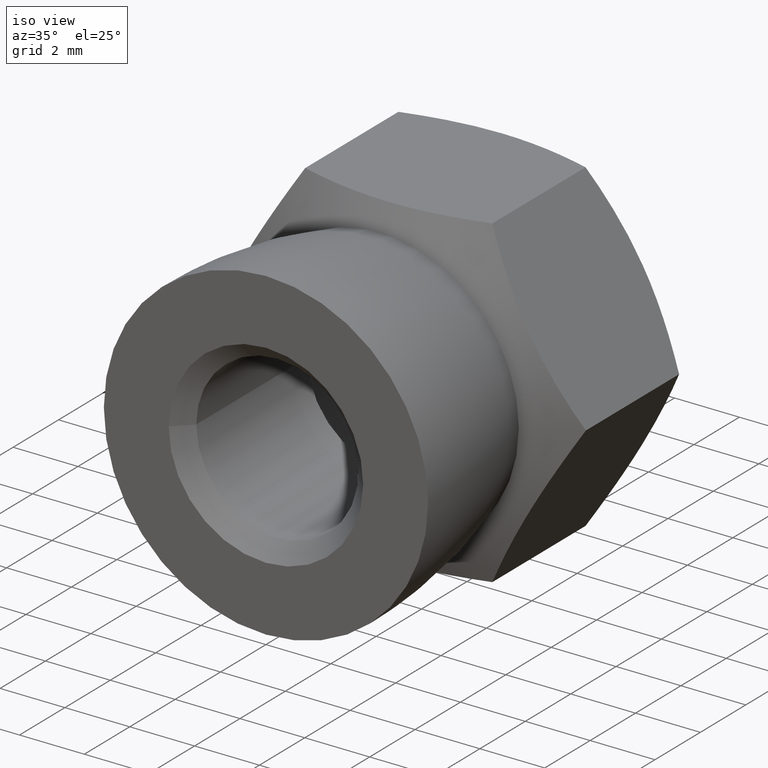
[diagram: clean part render]
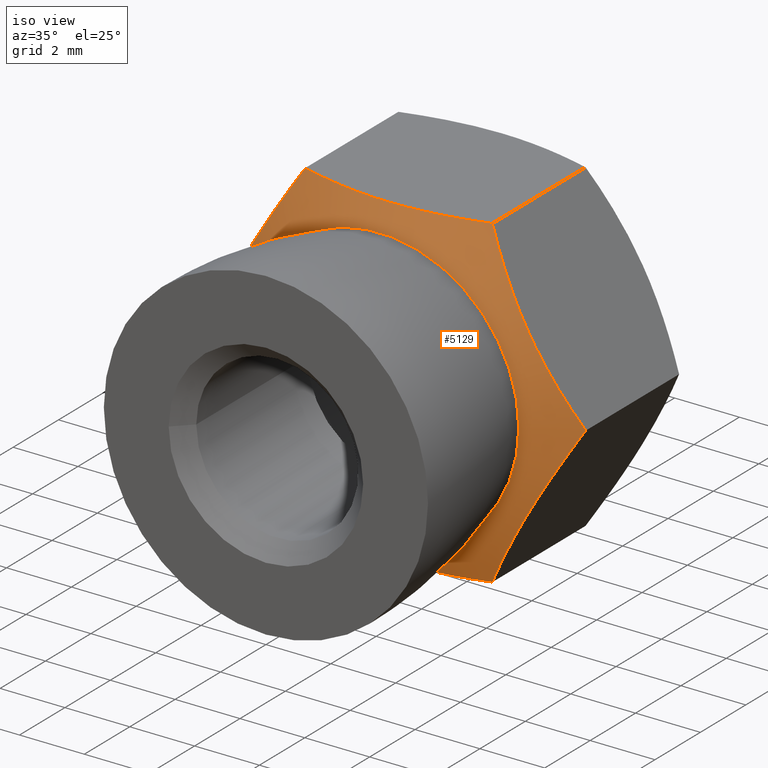
[diagram: same view with one face highlighted and labeled with its STEP entity id]
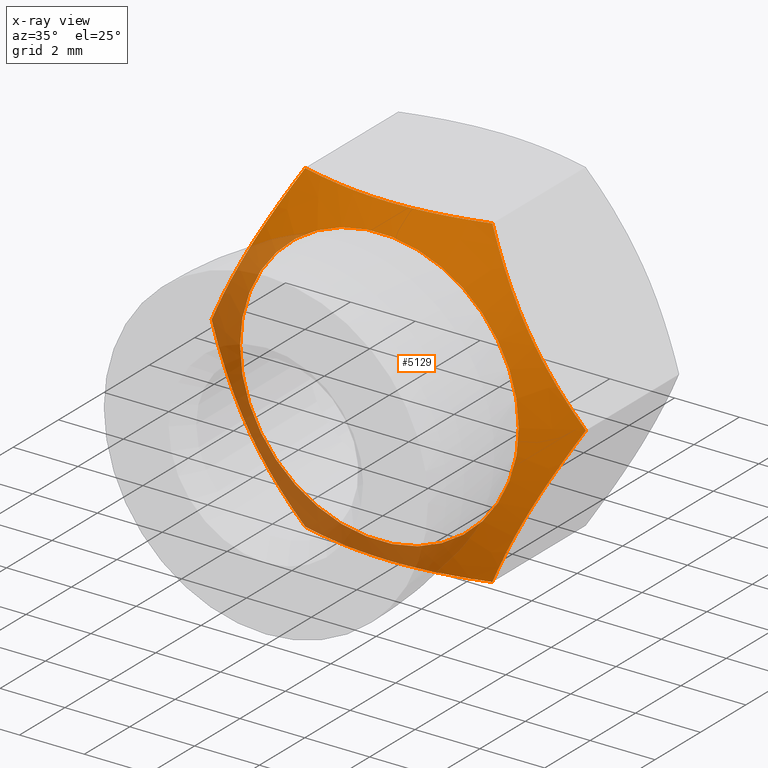
[diagram: x-ray of the same camera — body ghosted, the highlighted face saturated]
A machine part, iso view. The second image highlights one B-rep face of the part: STEP entity #5129.
The next image is the same camera in x-ray: the body ghosted, the highlighted face saturated — about 27% of this face is hidden behind the body in this view.
In plain terms, the highlighted conical surface has half-angle 60 deg.
Its self-contained STEP definition (entity closure, byte-faithful):
#115 = CARTESIAN_POINT ( 'NONE',  ( -0.9718922986298234035, 5.446004199421925485, -4.999999999999998224 ) ) ;
#165 = CARTESIAN_POINT ( 'NONE',  ( -0.4870926242147066709, 5.404096240944796570, -5.000000000000000888 ) ) ;
#219 = CARTESIAN_POINT ( 'NONE',  ( -2.417105151674780128, 5.715151997474116286, -4.999999999999999112 ) ) ;
#272 = CARTESIAN_POINT ( 'NONE',  ( 0.4888315940263714965, 5.404194223216501669, -5.000000000000000888 ) ) ;
#969 = CARTESIAN_POINT ( 'NONE',  ( -4.938378386023502209, 5.485357820840548904, 1.446477728407307817 ) ) ;
#1488 = CARTESIAN_POINT ( 'NONE',  ( -1.936092870082982254, 5.601447280723088618, -5.000000000000000888 ) ) ;
#1535 = CARTESIAN_POINT ( 'NONE',  ( 1.947366201742060099, 5.603832604811248785, -5.000000000000000888 ) ) ;
#1589 = ORIENTED_EDGE ( 'NONE', *, *, #10053, .T. ) ;
#2261 = CARTESIAN_POINT ( 'NONE',  ( -3.842998808858276494, 5.455133333985152433, -3.343730809630789391 ) ) ;
#2371 = CARTESIAN_POINT ( 'NONE',  ( 5.299591420899219862, 5.602068402268504776, -0.8208383996464131416 ) ) ;
#2390 = CARTESIAN_POINT ( 'NONE',  ( -0.9718922986298202948, 5.446004199421927261, 4.999999999999997335 ) ) ;
#2638 = CARTESIAN_POINT ( 'NONE',  ( 3.673940397442054938E-16, 5.000000000000001776, 0.000000000000000000 ) ) ;
#2814 = CARTESIAN_POINT ( 'NONE',  ( 2.420118327524840574, 5.716021826418211660, -5.000000000000000888 ) ) ;
#3423 = CARTESIAN_POINT ( 'NONE',  ( 4.823738040146305472, 5.404772064894670436, 1.645040632063879293 ) ) ;
#3464 = ORIENTED_EDGE ( 'NONE', *, *, #6119, .T. ) ;
#3527 = CARTESIAN_POINT ( 'NONE',  ( 5.302151296893804044, 5.578592321029638867, 0.8164045643627186877 ) ) ;
#3609 = CONICAL_SURFACE ( 'NONE', #9583, 4.300000000000001599, 1.047197551196603404 ) ;
#3857 = B_SPLINE_CURVE_WITH_KNOTS ( 'NONE', 3,
 ( #13723, #6136, #7300, #8749, #4992, #13669, #969, #11297, #8640, #13617 ),
 .UNSPECIFIED., .F., .F.,
 ( 4, 2, 2, 2, 4 ),
 ( 2.380735200809878351E-07, 0.002915699217586098339, 0.003644564503602603072, 0.004373429789619107805, 0.005831160361652118138 ),
 .UNSPECIFIED. ) ;
#3943 = ORIENTED_EDGE ( 'NONE', *, *, #13448, .T. ) ;
#3993 = CARTESIAN_POINT ( 'NONE',  ( 2.886751345948124658, 5.850727175817934445, -5.000000000000000000 ) ) ;
#4005 = ORIENTED_EDGE ( 'NONE', *, *, #4877, .T. ) ;
#4072 = VERTEX_POINT ( 'NONE', #6693 ) ;
#4169 = VERTEX_POINT ( 'NONE', #5679 ) ;
#4175 = DIRECTION ( 'NONE',  ( 7.347880794884106671E-17, 1.000000000000000000, -0.000000000000000000 ) ) ;
#4483 = AXIS2_PLACEMENT_3D ( 'NONE', #12553, #15040, #6270 ) ;
#4533 = CARTESIAN_POINT ( 'NONE',  ( -5.773502691896257311, 5.850727175817934445, 7.806255641895631925E-15 ) ) ;
#4695 = CARTESIAN_POINT ( 'NONE',  ( 4.210170878072868383, 5.403990664014552081, 2.707770130630919869 ) ) ;
#4781 = CARTESIAN_POINT ( 'NONE',  ( 2.420118327524843238, 5.716021826418211660, 4.999999999999998224 ) ) ;
#4803 = CARTESIAN_POINT ( 'NONE',  ( 4.086880414895044389, 5.414429110310912563, 2.921315476943608935 ) ) ;
#4815 = CARTESIAN_POINT ( 'NONE',  ( 4.938378386023506650, 5.485357820840550680, -1.446477728407302044 ) ) ;
#4816 = CARTESIAN_POINT ( 'NONE',  ( -3.721875651820885977, 5.485357820840546239, -3.553522271592694182 ) ) ;
#4835 = CARTESIAN_POINT ( 'NONE',  ( 1.947366201742063652, 5.603832604811247897, 4.999999999999998224 ) ) ;
#4838 = B_SPLINE_CURVE_WITH_KNOTS ( 'NONE', 3,
 ( #9842, #14881, #11106, #16275, #14765, #11000, #4815, #2371, #12390, #13543 ),
 .UNSPECIFIED., .F., .F.,
 ( 4, 2, 2, 2, 4 ),
 ( 2.380735200809878351E-07, 0.002915699217586106146, 0.003644564503602613047, 0.004373429789619119080, 0.005831160361652132015 ),
 .UNSPECIFIED. ) ;
#4877 = EDGE_CURVE ( 'NONE', #14997, #14997, #13684, .T. ) ;
#4992 = CARTESIAN_POINT ( 'NONE',  ( -4.573373622949341133, 5.414429110310913451, 2.078684523056395950 ) ) ;
#5129 = ADVANCED_FACE ( 'NONE', ( #14477, #7734 ), #3609, .T. ) ;
#5569 = DIRECTION ( 'NONE',  ( -1.000000000000000000, 0.000000000000000000, 0.000000000000000000 ) ) ;
#5582 = CARTESIAN_POINT ( 'NONE',  ( 2.886751345948128655, 5.850727175817934445, 4.999999999999999112 ) ) ;
#5679 = CARTESIAN_POINT ( 'NONE',  ( -2.886751345948129099, 5.850727175817934445, 4.999999999999998224 ) ) ;
#5821 = ORIENTED_EDGE ( 'NONE', *, *, #11438, .T. ) ;
#5974 = CARTESIAN_POINT ( 'NONE',  ( -0.4870926242147031737, 5.404096240944794793, 4.999999999999999112 ) ) ;
#6047 = CARTESIAN_POINT ( 'NONE',  ( 3.122720772761743646, 5.714490163726202887, 4.591288963725912886 ) ) ;
#6117 = CARTESIAN_POINT ( 'NONE',  ( -2.886751345948133096, 5.850727175817934445, -4.999999999999997335 ) ) ;
#6119 = EDGE_CURVE ( 'NONE', #4169, #12987, #3857, .T. ) ;
#6136 = CARTESIAN_POINT ( 'NONE',  ( -3.358102740950581477, 5.578592321029637091, 4.183595435637284865 ) ) ;
#6185 = CARTESIAN_POINT ( 'NONE',  ( 2.886751345948128655, 5.850727175817934445, 4.999999999999999112 ) ) ;
#6270 = DIRECTION ( 'NONE',  ( -1.000000000000000000, 0.000000000000000000, 0.000000000000000000 ) ) ;
#6693 = CARTESIAN_POINT ( 'NONE',  ( 5.773502691896256422, 5.850727175817934445, 5.637851296924623057E-15 ) ) ;
#7056 = CARTESIAN_POINT ( 'NONE',  ( -5.302151296893810262, 5.578592321029639756, -0.8164045643627106941 ) ) ;
#7154 = CARTESIAN_POINT ( 'NONE',  ( -4.300000000000001599, 5.000000000000001776, 0.000000000000000000 ) ) ;
#7179 = B_SPLINE_CURVE_WITH_KNOTS ( 'NONE', 3,
 ( #4533, #7056, #15945, #16117, #13544, #2261, #4816, #13703, #7229, #6117 ),
 .UNSPECIFIED., .F., .F.,
 ( 4, 2, 2, 2, 4 ),
 ( 2.380735200766418149E-07, 0.002915699217586102676, 0.003644564503602609577, 0.004373429789619114744, 0.005831160361652125076 ),
 .UNSPECIFIED. ) ;
#7229 = CARTESIAN_POINT ( 'NONE',  ( -3.122720772761746311, 5.714490163726201111, -4.591288963725908445 ) ) ;
#7300 = CARTESIAN_POINT ( 'NONE',  ( -3.836515997698080493, 5.404772064894669548, 3.354959367936124703 ) ) ;
#7734 = FACE_BOUND ( 'NONE', #14865, .T. ) ;
#8198 = EDGE_LOOP ( 'NONE', ( #9225, #5821, #3943, #15557, #3464, #1589 ) ) ;
#8506 = CARTESIAN_POINT ( 'NONE',  ( 2.886751345948128655, 5.850727175817934445, 4.999999999999999112 ) ) ;
#8536 = CARTESIAN_POINT ( 'NONE',  ( -2.886751345948129099, 5.850727175817934445, 4.999999999999998224 ) ) ;
#8640 = CARTESIAN_POINT ( 'NONE',  ( -5.537533265082641876, 5.714490163726202887, 0.4087110362740943303 ) ) ;
#8748 = CARTESIAN_POINT ( 'NONE',  ( -2.886751345948133096, 5.850727175817934445, -4.999999999999997335 ) ) ;
#8749 = CARTESIAN_POINT ( 'NONE',  ( -4.450083159771516250, 5.403990664014551193, 2.292229869369084572 ) ) ;
#9225 = ORIENTED_EDGE ( 'NONE', *, *, #13190, .T. ) ;
#9441 = CARTESIAN_POINT ( 'NONE',  ( -5.773502691896257311, 5.850727175817934445, 7.806255641895631925E-15 ) ) ;
#9583 = AXIS2_PLACEMENT_3D ( 'NONE', #2638, #4175, #5569 ) ;
#9842 = CARTESIAN_POINT ( 'NONE',  ( 2.886751345948124658, 5.850727175817934445, -5.000000000000000000 ) ) ;
#10053 = EDGE_CURVE ( 'NONE', #12987, #14026, #7179, .T. ) ;
#10267 = CARTESIAN_POINT ( 'NONE',  ( 2.886751345948124658, 5.850727175817934445, -5.000000000000000000 ) ) ;
#10632 = B_SPLINE_CURVE_WITH_KNOTS ( 'NONE', 3,
 ( #15032, #3527, #3423, #4695, #4803, #13533, #14804, #13636, #6047, #8506 ),
 .UNSPECIFIED., .F., .F.,
 ( 4, 2, 2, 2, 4 ),
 ( 2.380735200893376212E-07, 0.002915699217586109615, 0.003644564503602614781, 0.004373429789619118213, 0.005831160361652128546 ),
 .UNSPECIFIED. ) ;
#10858 = EDGE_CURVE ( 'NONE', #11579, #4169, #14603, .T. ) ;
#11000 = CARTESIAN_POINT ( 'NONE',  ( 4.817255228986114801, 5.455133333985153321, -1.656269190369205946 ) ) ;
#11106 = CARTESIAN_POINT ( 'NONE',  ( 3.836515997698080938, 5.404772064894670436, -3.354959367936124259 ) ) ;
#11186 = B_SPLINE_CURVE_WITH_KNOTS ( 'NONE', 3,
 ( #14183, #219, #1488, #115, #165, #272, #14021, #1535, #2814, #10267 ),
 .UNSPECIFIED., .F., .F.,
 ( 4, 2, 2, 2, 4 ),
 ( 0.005150343764683535178, 0.006610959941926982178, 0.008071576119170429178, 0.009532192296413876179, 0.01099280847365732318 ),
 .UNSPECIFIED. ) ;
#11297 = CARTESIAN_POINT ( 'NONE',  ( -5.299591420899215422, 5.602068402268500336, 0.8208383996464206911 ) ) ;
#11438 = EDGE_CURVE ( 'NONE', #14117, #4072, #4838, .T. ) ;
#11579 = VERTEX_POINT ( 'NONE', #5582 ) ;
#12390 = CARTESIAN_POINT ( 'NONE',  ( 5.537533265082644540, 5.714490163726203775, -0.4087110362740860592 ) ) ;
#12524 = CARTESIAN_POINT ( 'NONE',  ( -1.936092870082978923, 5.601447280723085953, 4.999999999999998224 ) ) ;
#12553 = CARTESIAN_POINT ( 'NONE',  ( 3.673940397442054938E-16, 5.000000000000001776, 0.000000000000000000 ) ) ;
#12987 = VERTEX_POINT ( 'NONE', #9441 ) ;
#13190 = EDGE_CURVE ( 'NONE', #14026, #14117, #11186, .T. ) ;
#13448 = EDGE_CURVE ( 'NONE', #4072, #11579, #10632, .T. ) ;
#13533 = CARTESIAN_POINT ( 'NONE',  ( 3.842998808858272941, 5.455133333985151545, 3.343730809630793388 ) ) ;
#13543 = CARTESIAN_POINT ( 'NONE',  ( 5.773502691896256422, 5.850727175817934445, 5.637851296924623057E-15 ) ) ;
#13544 = CARTESIAN_POINT ( 'NONE',  ( -4.086880414895048830, 5.414429110310912563, -2.921315476943603606 ) ) ;
#13617 = CARTESIAN_POINT ( 'NONE',  ( -5.773502691896257311, 5.850727175817934445, 7.806255641895631925E-15 ) ) ;
#13636 = CARTESIAN_POINT ( 'NONE',  ( 3.360662616945166548, 5.602068402268499447, 4.179161600353586081 ) ) ;
#13669 = CARTESIAN_POINT ( 'NONE',  ( -4.817255228986111248, 5.455133333985155097, 1.656269190369211497 ) ) ;
#13684 = CIRCLE ( 'NONE', #4483, 4.300000000000001599 ) ;
#13703 = CARTESIAN_POINT ( 'NONE',  ( -3.360662616945169656, 5.602068402268498559, -4.179161600353580752 ) ) ;
#13723 = CARTESIAN_POINT ( 'NONE',  ( -2.886751345948129099, 5.850727175817934445, 4.999999999999998224 ) ) ;
#13772 = CARTESIAN_POINT ( 'NONE',  ( -2.417105151674776131, 5.715151997474114509, 4.999999999999997335 ) ) ;
#14021 = CARTESIAN_POINT ( 'NONE',  ( 0.9834215448287363381, 5.447308261708220023, -5.000000000000000888 ) ) ;
#14026 = VERTEX_POINT ( 'NONE', #8748 ) ;
#14117 = VERTEX_POINT ( 'NONE', #3993 ) ;
#14183 = CARTESIAN_POINT ( 'NONE',  ( -2.886751345948133096, 5.850727175817934445, -4.999999999999997335 ) ) ;
#14477 = FACE_OUTER_BOUND ( 'NONE', #8198, .T. ) ;
#14603 = B_SPLINE_CURVE_WITH_KNOTS ( 'NONE', 3,
 ( #6185, #4781, #4835, #14900, #14838, #5974, #2390, #12524, #13772, #8536 ),
 .UNSPECIFIED., .F., .F.,
 ( 4, 2, 2, 2, 4 ),
 ( 0.002116063980015261709, 0.003572946038796644738, 0.005029828097578027332, 0.006486710156359411228, 0.007943592215140793389 ),
 .UNSPECIFIED. ) ;
#14765 = CARTESIAN_POINT ( 'NONE',  ( 4.573373622949342909, 5.414429110310915227, -2.078684523056391509 ) ) ;
#14804 = CARTESIAN_POINT ( 'NONE',  ( 3.721875651820881536, 5.485357820840545351, 3.553522271592697290 ) ) ;
#14838 = CARTESIAN_POINT ( 'NONE',  ( 0.4888315940263756043, 5.404194223216499005, 4.999999999999999112 ) ) ;
#14865 = EDGE_LOOP ( 'NONE', ( #4005 ) ) ;
#14881 = CARTESIAN_POINT ( 'NONE',  ( 3.358102740950583698, 5.578592321029639756, -4.183595435637288418 ) ) ;
#14900 = CARTESIAN_POINT ( 'NONE',  ( 0.9834215448287400019, 5.447308261708218247, 4.999999999999997335 ) ) ;
#14997 = VERTEX_POINT ( 'NONE', #7154 ) ;
#15032 = CARTESIAN_POINT ( 'NONE',  ( 5.773502691896256422, 5.850727175817934445, 5.637851296924623057E-15 ) ) ;
#15040 = DIRECTION ( 'NONE',  ( 7.347880794884106671E-17, 1.000000000000000000, -0.000000000000000000 ) ) ;
#15557 = ORIENTED_EDGE ( 'NONE', *, *, #10858, .T. ) ;
#15945 = CARTESIAN_POINT ( 'NONE',  ( -4.823738040146308137, 5.404772064894670436, -1.645040632063871966 ) ) ;
#16117 = CARTESIAN_POINT ( 'NONE',  ( -4.210170878072869272, 5.403990664014551193, -2.707770130630913208 ) ) ;
#16275 = CARTESIAN_POINT ( 'NONE',  ( 4.450083159771520691, 5.403990664014552969, -2.292229869369080575 ) ) ;